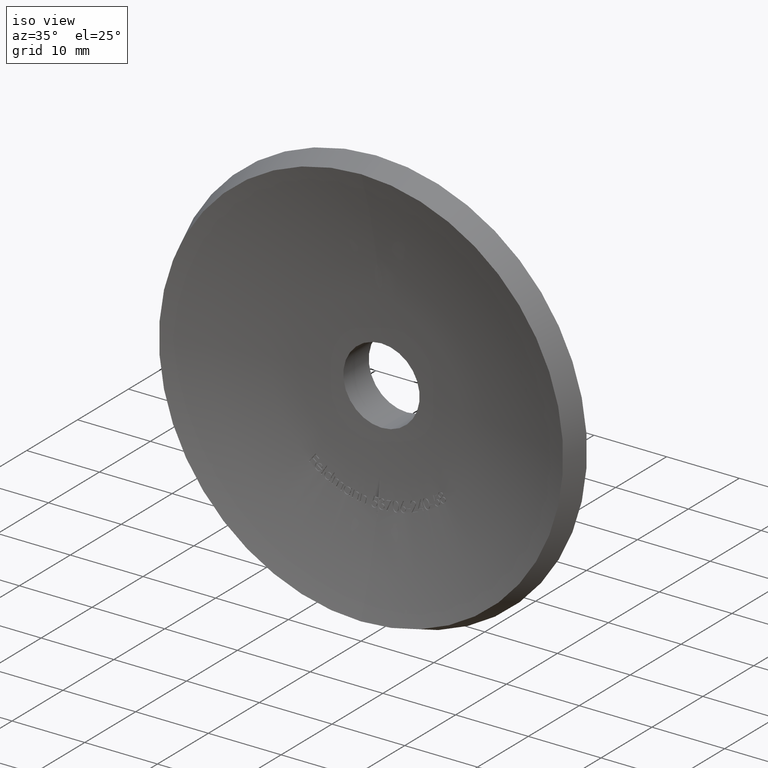
[diagram: clean part render]
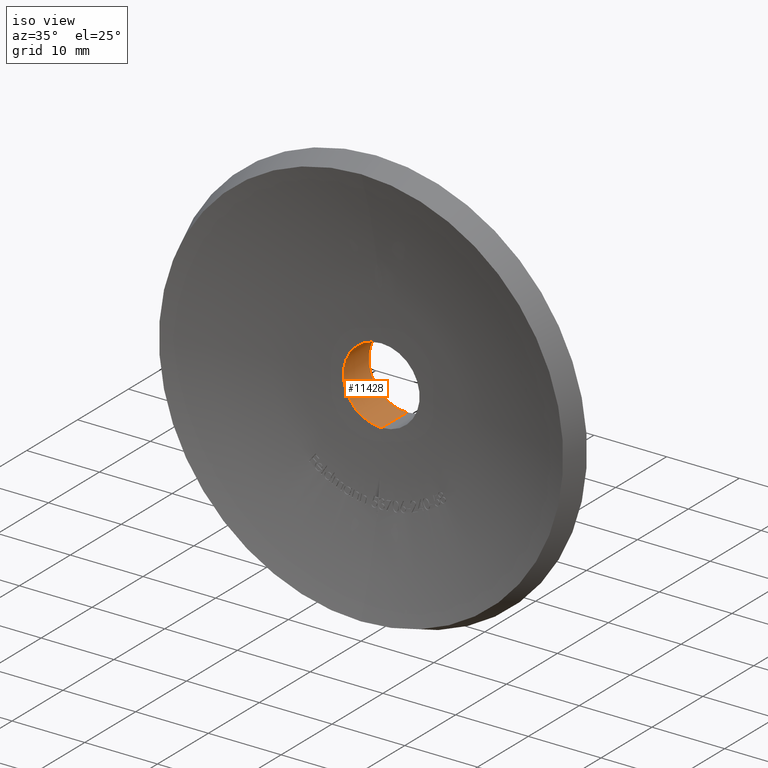
[diagram: same view with one face highlighted and labeled with its STEP entity id]
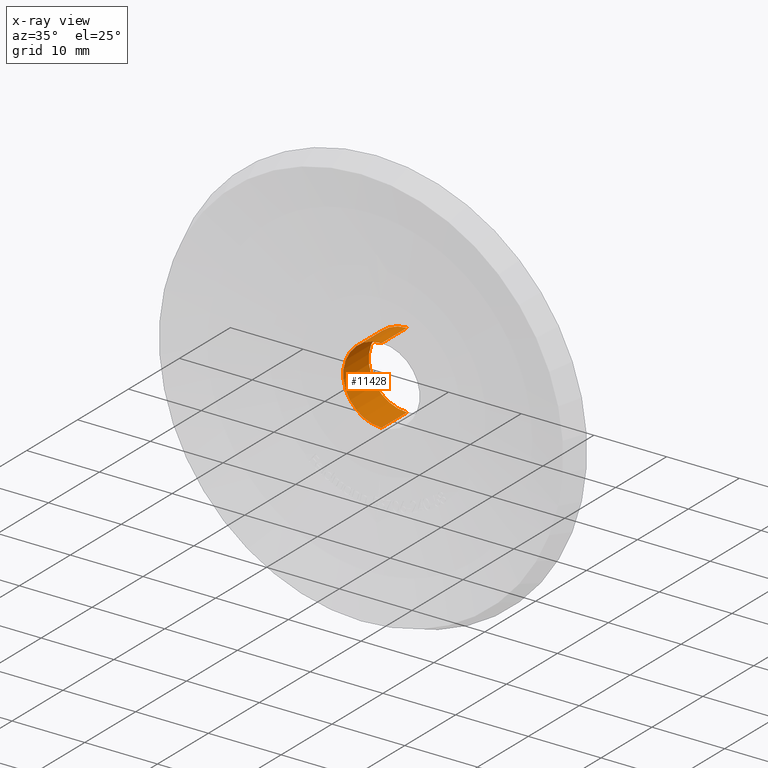
[diagram: x-ray of the same camera — body ghosted, the highlighted face saturated]
A machine part, iso view. The second image highlights one B-rep face of the part: STEP entity #11428.
The next image is the same camera in x-ray: the body ghosted, the highlighted face saturated — about 0% of this face is hidden behind the body in this view.
In plain terms, the highlighted cylindrical surface (partial cylindrical patch) has radius 5.25 mm, axis along (-0, -1, -0).
Its self-contained STEP definition (entity closure, byte-faithful):
#171 = FACE_OUTER_BOUND ( 'NONE', #3519, .T. ) ;
#191 = AXIS2_PLACEMENT_3D ( 'NONE', #796, #7033, #9381 ) ;
#796 = CARTESIAN_POINT ( 'NONE',  ( 0.000000000000000000, 3.999999999999989786, 0.000000000000000000 ) ) ;
#896 = DIRECTION ( 'NONE',  ( 0.000000000000000000, 0.000000000000000000, -1.000000000000000000 ) ) ;
#1189 = ORIENTED_EDGE ( 'NONE', *, *, #3007, .T. ) ;
#2395 = EDGE_CURVE ( 'NONE', #4172, #5583, #9988, .T. ) ;
#2429 = ORIENTED_EDGE ( 'NONE', *, *, #2395, .F. ) ;
#3007 = EDGE_CURVE ( 'NONE', #4819, #7099, #8778, .T. ) ;
#3179 = DIRECTION ( 'NONE',  ( -0.000000000000000000, -1.000000000000000000, -0.000000000000000000 ) ) ;
#3323 = AXIS2_PLACEMENT_3D ( 'NONE', #4499, #6756, #4451 ) ;
#3519 = EDGE_LOOP ( 'NONE', ( #10910, #1189, #10736, #2429 ) ) ;
#4172 = VERTEX_POINT ( 'NONE', #5278 ) ;
#4451 = DIRECTION ( 'NONE',  ( 0.000000000000000000, 0.000000000000000000, -1.000000000000000000 ) ) ;
#4499 = CARTESIAN_POINT ( 'NONE',  ( 0.000000000000000000, 8.999999999999994671, 0.000000000000000000 ) ) ;
#4819 = VERTEX_POINT ( 'NONE', #13276 ) ;
#5278 = CARTESIAN_POINT ( 'NONE',  ( 0.000000000000000000, 8.999999999999994671, -5.250000000000000000 ) ) ;
#5354 = CARTESIAN_POINT ( 'NONE',  ( 2.023805921049235480E-15, 3.999999999999989786, 5.250000000000000888 ) ) ;
#5487 = AXIS2_PLACEMENT_3D ( 'NONE', #8455, #3179, #896 ) ;
#5583 = VERTEX_POINT ( 'NONE', #7655 ) ;
#5754 = CARTESIAN_POINT ( 'NONE',  ( 6.429395695523605139E-16, 0.000000000000000000, 5.250000000000000888 ) ) ;
#6756 = DIRECTION ( 'NONE',  ( -0.000000000000000000, -1.000000000000000000, -0.000000000000000000 ) ) ;
#6830 = DIRECTION ( 'NONE',  ( -0.000000000000000000, -1.000000000000000000, -0.000000000000000000 ) ) ;
#7033 = DIRECTION ( 'NONE',  ( -0.000000000000000000, -1.000000000000000000, -0.000000000000000000 ) ) ;
#7099 = VERTEX_POINT ( 'NONE', #5354 ) ;
#7655 = CARTESIAN_POINT ( 'NONE',  ( 0.000000000000000000, 3.999999999999989786, -5.250000000000000888 ) ) ;
#7836 = CARTESIAN_POINT ( 'NONE',  ( 0.000000000000000000, 0.000000000000000000, -5.250000000000000888 ) ) ;
#8207 = CYLINDRICAL_SURFACE ( 'NONE', #5487, 5.250000000000000888 ) ;
#8455 = CARTESIAN_POINT ( 'NONE',  ( 0.000000000000000000, 0.000000000000000000, 0.000000000000000000 ) ) ;
#8778 = LINE ( 'NONE', #5754, #9126 ) ;
#9126 = VECTOR ( 'NONE', #6830, 1000.000000000000000 ) ;
#9381 = DIRECTION ( 'NONE',  ( 0.000000000000000000, 0.000000000000000000, -1.000000000000000000 ) ) ;
#9585 = EDGE_CURVE ( 'NONE', #4819, #4172, #13077, .T. ) ;
#9757 = EDGE_CURVE ( 'NONE', #7099, #5583, #12035, .T. ) ;
#9988 = LINE ( 'NONE', #7836, #10777 ) ;
#10013 = DIRECTION ( 'NONE',  ( -0.000000000000000000, -1.000000000000000000, -0.000000000000000000 ) ) ;
#10736 = ORIENTED_EDGE ( 'NONE', *, *, #9757, .T. ) ;
#10777 = VECTOR ( 'NONE', #10013, 1000.000000000000000 ) ;
#10910 = ORIENTED_EDGE ( 'NONE', *, *, #9585, .F. ) ;
#11428 = ADVANCED_FACE ( 'NONE', ( #171 ), #8207, .F. ) ;
#12035 = CIRCLE ( 'NONE', #191, 5.250000000000000888 ) ;
#13077 = CIRCLE ( 'NONE', #3323, 5.250000000000000000 ) ;
#13276 = CARTESIAN_POINT ( 'NONE',  ( 1.929806360514462699E-15, 8.999999999999994671, 5.250000000000000000 ) ) ;